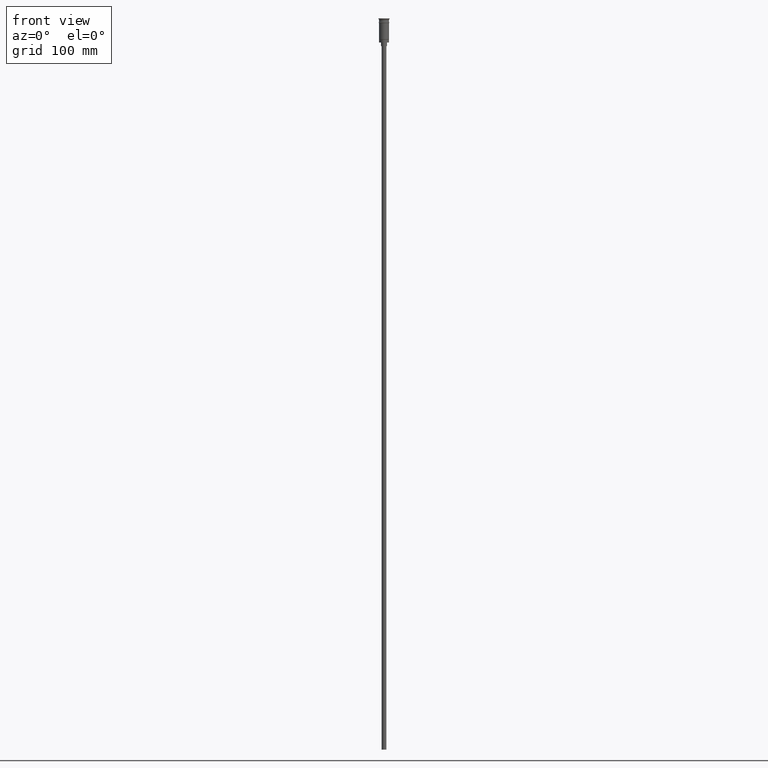
[diagram: clean part render]
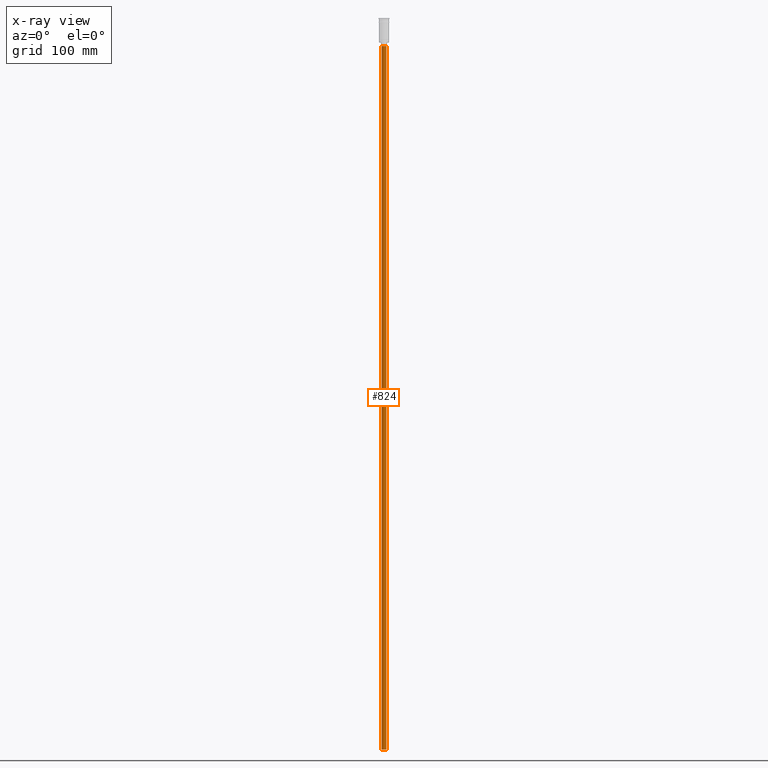
[diagram: x-ray — body ghosted, one internal face saturated and labeled with its STEP entity id]
A machine part, front view, then the same camera in x-ray: the body is ghosted and one INTERNAL B-rep face — a face not visible from any outside direction — is saturated and labeled: STEP entity #824.
In plain terms, the highlighted cylindrical surface (edge-blend (fillet) strip) has radius 2 mm, axis along (-0, -0, 1).
Its self-contained STEP definition (entity closure, byte-faithful):
#39 = LINE ( 'NONE', #405, #1352 ) ;
#62 = CARTESIAN_POINT ( 'NONE',  ( 0.000000000000000000, 0.000000000000000000, -620.4999999999998863 ) ) ;
#63 = VERTEX_POINT ( 'NONE', #629 ) ;
#133 = CARTESIAN_POINT ( 'NONE',  ( 2.000000000000000000, 0.000000000000000000, -620.4999999999998863 ) ) ;
#270 = DIRECTION ( 'NONE',  ( -1.000000000000000000, 0.000000000000000000, 0.000000000000000000 ) ) ;
#274 = ORIENTED_EDGE ( 'NONE', *, *, #796, .T. ) ;
#357 = CARTESIAN_POINT ( 'NONE',  ( -2.000000000000000000, 2.449293598294706414E-16, -23.49999999999999645 ) ) ;
#363 = DIRECTION ( 'NONE',  ( -0.000000000000000000, -0.000000000000000000, 1.000000000000000000 ) ) ;
#405 = CARTESIAN_POINT ( 'NONE',  ( -2.000000000000000000, 2.449293598294706414E-16, -620.4999999999998863 ) ) ;
#425 = CARTESIAN_POINT ( 'NONE',  ( 2.000000000000000000, 0.000000000000000000, -620.4999999999998863 ) ) ;
#488 = VERTEX_POINT ( 'NONE', #133 ) ;
#499 = DIRECTION ( 'NONE',  ( 0.000000000000000000, 0.000000000000000000, -1.000000000000000000 ) ) ;
#545 = EDGE_CURVE ( 'NONE', #488, #63, #790, .T. ) ;
#586 = EDGE_CURVE ( 'NONE', #488, #1541, #602, .T. ) ;
#602 = CIRCLE ( 'NONE', #1506, 2.000000000000000000 ) ;
#629 = CARTESIAN_POINT ( 'NONE',  ( 2.000000000000000000, 0.000000000000000000, -23.49999999999999645 ) ) ;
#635 = ORIENTED_EDGE ( 'NONE', *, *, #545, .T. ) ;
#647 = ORIENTED_EDGE ( 'NONE', *, *, #991, .F. ) ;
#695 = EDGE_LOOP ( 'NONE', ( #647, #717, #635, #274 ) ) ;
#717 = ORIENTED_EDGE ( 'NONE', *, *, #586, .F. ) ;
#747 = CARTESIAN_POINT ( 'NONE',  ( 0.000000000000000000, 0.000000000000000000, -620.4999999999998863 ) ) ;
#790 = LINE ( 'NONE', #425, #1092 ) ;
#796 = EDGE_CURVE ( 'NONE', #63, #1218, #1350, .T. ) ;
#824 = ADVANCED_FACE ( 'NONE', ( #973 ), #857, .T. ) ;
#837 = CARTESIAN_POINT ( 'NONE',  ( 0.000000000000000000, 0.000000000000000000, -23.49999999999999645 ) ) ;
#856 = AXIS2_PLACEMENT_3D ( 'NONE', #837, #499, #270 ) ;
#857 = CYLINDRICAL_SURFACE ( 'NONE', #1482, 2.000000000000000000 ) ;
#897 = DIRECTION ( 'NONE',  ( 0.000000000000000000, 0.000000000000000000, -1.000000000000000000 ) ) ;
#973 = FACE_OUTER_BOUND ( 'NONE', #695, .T. ) ;
#991 = EDGE_CURVE ( 'NONE', #1541, #1218, #39, .T. ) ;
#1022 = DIRECTION ( 'NONE',  ( -0.000000000000000000, -0.000000000000000000, 1.000000000000000000 ) ) ;
#1092 = VECTOR ( 'NONE', #1022, 1000.000000000000000 ) ;
#1144 = DIRECTION ( 'NONE',  ( -0.000000000000000000, -0.000000000000000000, 1.000000000000000000 ) ) ;
#1176 = DIRECTION ( 'NONE',  ( -1.000000000000000000, 0.000000000000000000, 0.000000000000000000 ) ) ;
#1218 = VERTEX_POINT ( 'NONE', #357 ) ;
#1350 = CIRCLE ( 'NONE', #856, 2.000000000000000000 ) ;
#1352 = VECTOR ( 'NONE', #1144, 1000.000000000000000 ) ;
#1478 = DIRECTION ( 'NONE',  ( 1.000000000000000000, 0.000000000000000000, 0.000000000000000000 ) ) ;
#1482 = AXIS2_PLACEMENT_3D ( 'NONE', #747, #363, #1478 ) ;
#1506 = AXIS2_PLACEMENT_3D ( 'NONE', #62, #897, #1176 ) ;
#1541 = VERTEX_POINT ( 'NONE', #1580 ) ;
#1580 = CARTESIAN_POINT ( 'NONE',  ( -2.000000000000000000, 2.449293598294706414E-16, -620.4999999999998863 ) ) ;